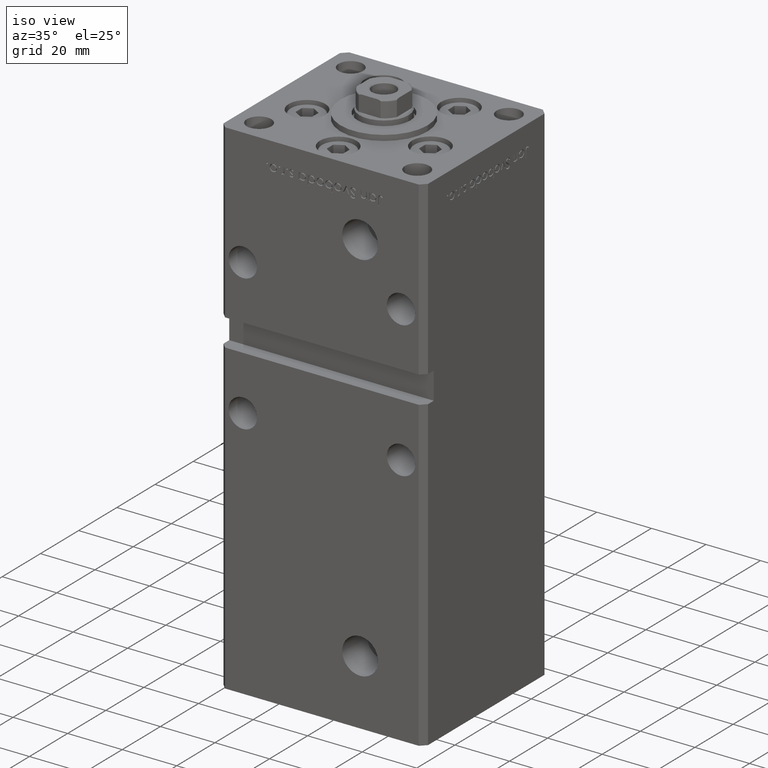
[diagram: clean part render]
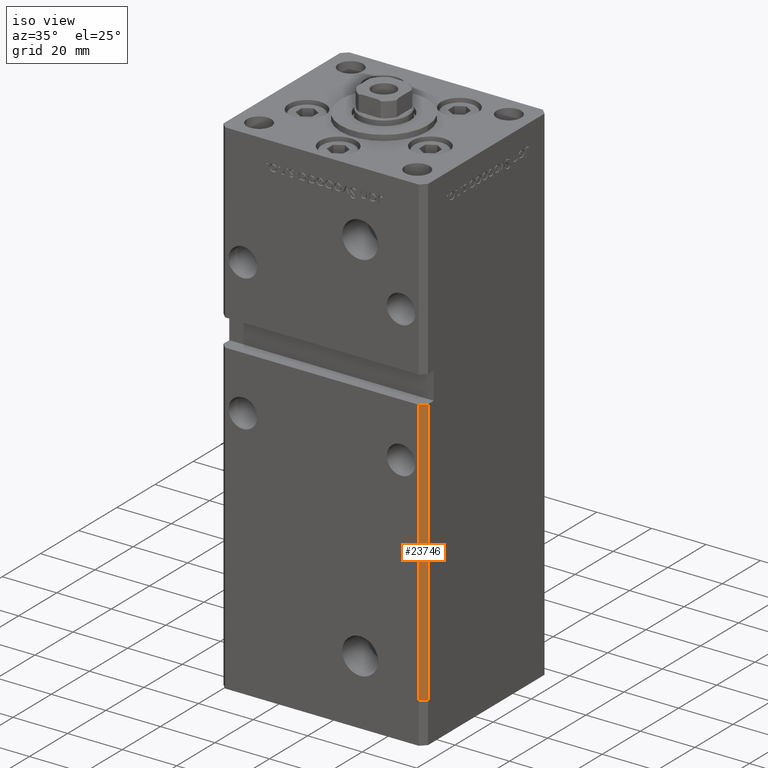
[diagram: same view with one face highlighted and labeled with its STEP entity id]
A machine part, iso view. The second image highlights one B-rep face of the part: STEP entity #23746.
In plain terms, the highlighted planar face has unit normal (0.7071, -0.7071, 0).
Its self-contained STEP definition (entity closure, byte-faithful):
#240 = VECTOR ( 'NONE', #18927, 1000.000000000000114 ) ;
#2925 = CARTESIAN_POINT ( 'NONE',  ( 37.49999999999999289, -30.50000000000000000, 0.000000000000000000 ) ) ;
#4245 = ORIENTED_EDGE ( 'NONE', *, *, #46381, .F. ) ;
#4835 = EDGE_CURVE ( 'NONE', #35268, #29781, #39803, .T. ) ;
#5093 = PLANE ( 'NONE',  #21476 ) ;
#8245 = DIRECTION ( 'NONE',  ( 0.7071067811865475727, -0.7071067811865475727, 0.000000000000000000 ) ) ;
#8504 = DIRECTION ( 'NONE',  ( 0.7071067811865474617, 0.7071067811865474617, 0.000000000000000000 ) ) ;
#9257 = VERTEX_POINT ( 'NONE', #52770 ) ;
#10050 = CARTESIAN_POINT ( 'NONE',  ( 35.49999999999999289, -32.50000000000000000, 0.000000000000000000 ) ) ;
#10438 = ORIENTED_EDGE ( 'NONE', *, *, #4835, .F. ) ;
#11120 = CARTESIAN_POINT ( 'NONE',  ( 37.49999999999999289, -30.50000000000000000, 98.00000000000001421 ) ) ;
#12176 = EDGE_CURVE ( 'NONE', #9257, #35268, #21273, .T. ) ;
#17612 = CARTESIAN_POINT ( 'NONE',  ( 37.49999999999999289, -30.50000000000000000, 0.000000000000000000 ) ) ;
#18270 = CARTESIAN_POINT ( 'NONE',  ( 37.49999999999999289, -30.50000000000000000, 156.0000000000000000 ) ) ;
#18927 = DIRECTION ( 'NONE',  ( 0.7071067811865474617, 0.7071067811865474617, 0.000000000000000000 ) ) ;
#19102 = ORIENTED_EDGE ( 'NONE', *, *, #12176, .F. ) ;
#19330 = DIRECTION ( 'NONE',  ( -0.7071067811865474617, -0.7071067811865474617, 0.000000000000000000 ) ) ;
#20499 = CARTESIAN_POINT ( 'NONE',  ( 35.49999999999999289, -32.50000000000000000, 156.0000000000000000 ) ) ;
#21273 = LINE ( 'NONE', #18270, #34154 ) ;
#21476 = AXIS2_PLACEMENT_3D ( 'NONE', #37929, #8245, #8504 ) ;
#23746 = ADVANCED_FACE ( 'NONE', ( #41970 ), #5093, .T. ) ;
#27562 = EDGE_LOOP ( 'NONE', ( #4245, #29852, #10438, #19102 ) ) ;
#27673 = EDGE_CURVE ( 'NONE', #50446, #29781, #45515, .T. ) ;
#29621 = DIRECTION ( 'NONE',  ( -0.000000000000000000, -0.000000000000000000, -1.000000000000000000 ) ) ;
#29781 = VERTEX_POINT ( 'NONE', #10050 ) ;
#29852 = ORIENTED_EDGE ( 'NONE', *, *, #27673, .T. ) ;
#34154 = VECTOR ( 'NONE', #29621, 1000.000000000000000 ) ;
#35268 = VERTEX_POINT ( 'NONE', #17612 ) ;
#37171 = DIRECTION ( 'NONE',  ( -0.000000000000000000, -0.000000000000000000, -1.000000000000000000 ) ) ;
#37929 = CARTESIAN_POINT ( 'NONE',  ( 37.49999999999999289, -30.50000000000000000, 156.0000000000000000 ) ) ;
#39124 = LINE ( 'NONE', #11120, #240 ) ;
#39246 = VECTOR ( 'NONE', #19330, 1000.000000000000114 ) ;
#39803 = LINE ( 'NONE', #2925, #39246 ) ;
#40776 = CARTESIAN_POINT ( 'NONE',  ( 35.49999999999999289, -32.50000000000000000, 98.00000000000001421 ) ) ;
#41970 = FACE_OUTER_BOUND ( 'NONE', #27562, .T. ) ;
#45515 = LINE ( 'NONE', #20499, #50796 ) ;
#46381 = EDGE_CURVE ( 'NONE', #50446, #9257, #39124, .T. ) ;
#50446 = VERTEX_POINT ( 'NONE', #40776 ) ;
#50796 = VECTOR ( 'NONE', #37171, 1000.000000000000000 ) ;
#52770 = CARTESIAN_POINT ( 'NONE',  ( 37.49999999999999289, -30.50000000000000355, 98.00000000000001421 ) ) ;